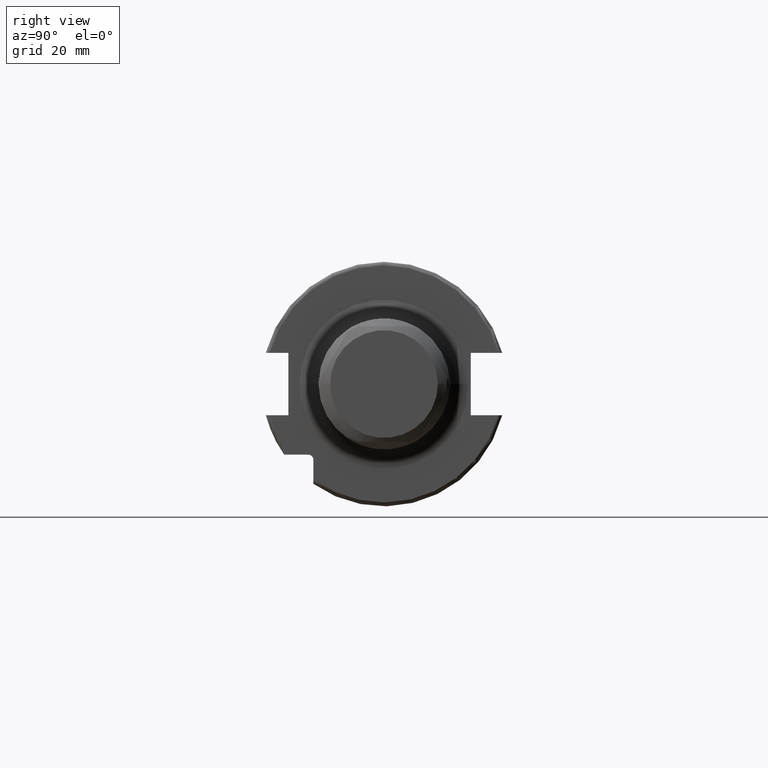
[diagram: clean part render]
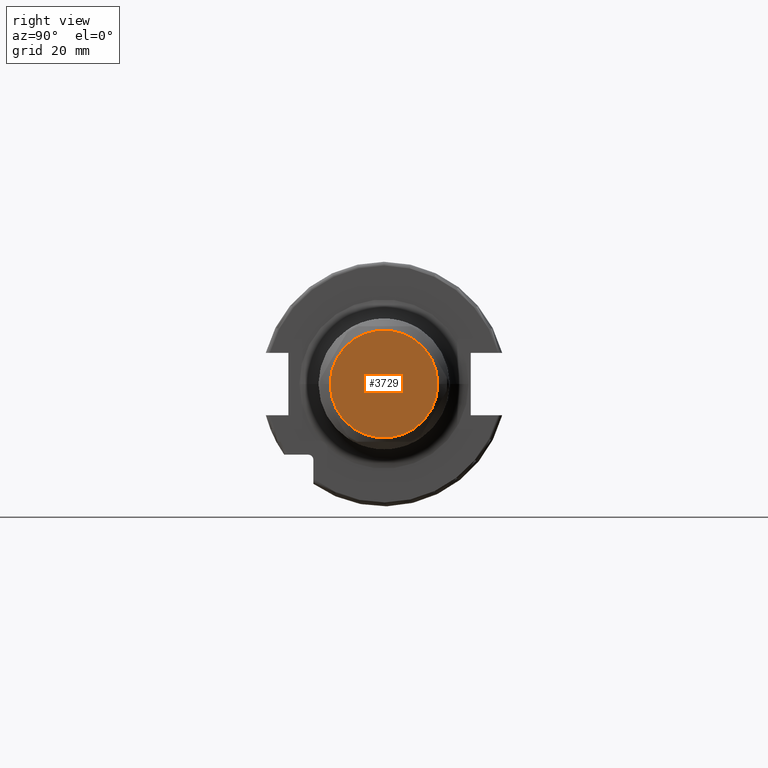
[diagram: same view with one face highlighted and labeled with its STEP entity id]
A machine part, right view. The second image highlights one B-rep face of the part: STEP entity #3729.
In plain terms, the highlighted planar face has unit normal (1, 0, 0).
Its self-contained STEP definition (entity closure, byte-faithful):
#3172=CARTESIAN_POINT('',(1.9E1,0.E0,0.E0));
#3173=DIRECTION('',(-1.E0,0.E0,0.E0));
#3174=DIRECTION('',(0.E0,1.E0,0.E0));
#3175=AXIS2_PLACEMENT_3D('',#3172,#3173,#3174);
#3502=CARTESIAN_POINT('',(1.9E1,0.E0,0.E0));
#3503=DIRECTION('',(1.E0,0.E0,0.E0));
#3504=DIRECTION('',(0.E0,1.E0,0.E0));
#3505=AXIS2_PLACEMENT_3D('',#3502,#3503,#3504);
#3650=CARTESIAN_POINT('',(1.9E1,1.4E1,0.E0));
#3651=CARTESIAN_POINT('',(1.9E1,-1.4E1,0.E0));
#3652=VERTEX_POINT('',#3650);
#3653=VERTEX_POINT('',#3651);
#3718=CARTESIAN_POINT('',(1.9E1,0.E0,0.E0));
#3719=DIRECTION('',(1.E0,0.E0,0.E0));
#3720=DIRECTION('',(0.E0,-1.E0,0.E0));
#3721=AXIS2_PLACEMENT_3D('',#3718,#3719,#3720);
#3722=PLANE('',#3721);
#3724=ORIENTED_EDGE('',*,*,#3723,.T.);
#3726=ORIENTED_EDGE('',*,*,#3725,.F.);
#3727=EDGE_LOOP('',(#3724,#3726));
#3728=FACE_OUTER_BOUND('',#3727,.F.);
#3729=ADVANCED_FACE('',(#3728),#3722,.T.);
#3176=CIRCLE('',#3175,1.4E1);
#3506=CIRCLE('',#3505,1.4E1);
#3723=EDGE_CURVE('',#3652,#3653,#3176,.T.);
#3725=EDGE_CURVE('',#3652,#3653,#3506,.T.);